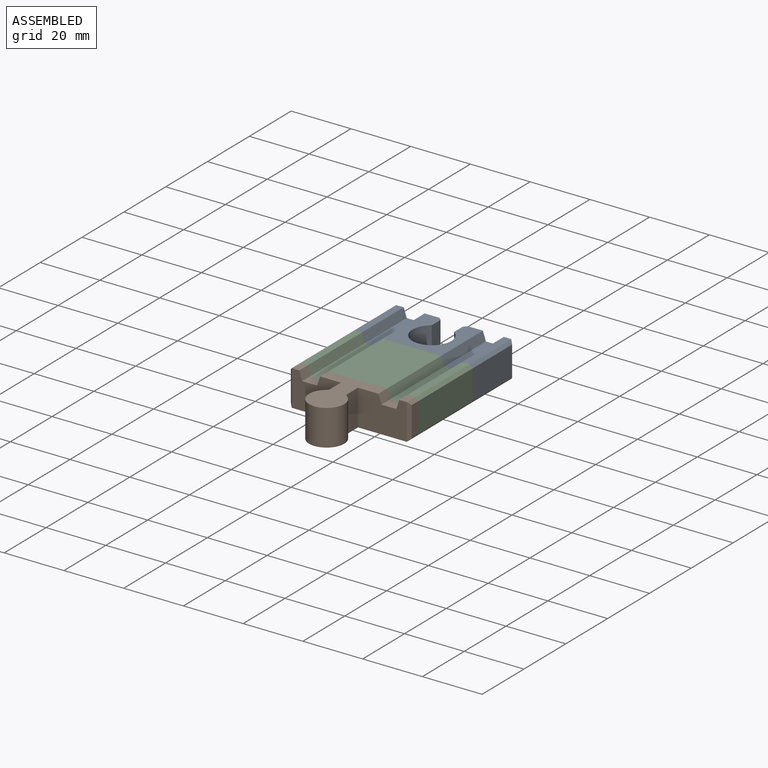
[diagram: assembled view]
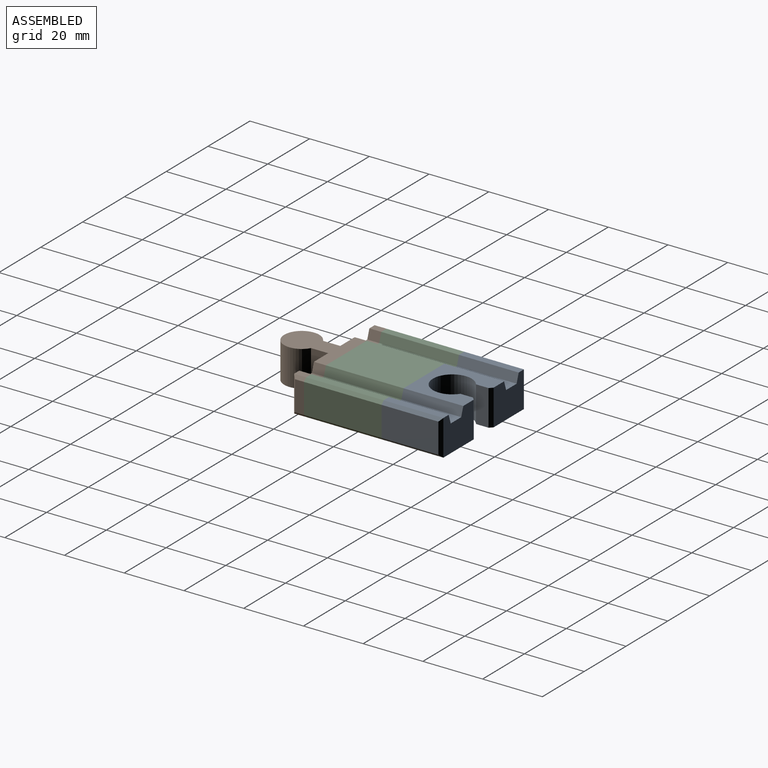
[diagram: assembled view, second angle]
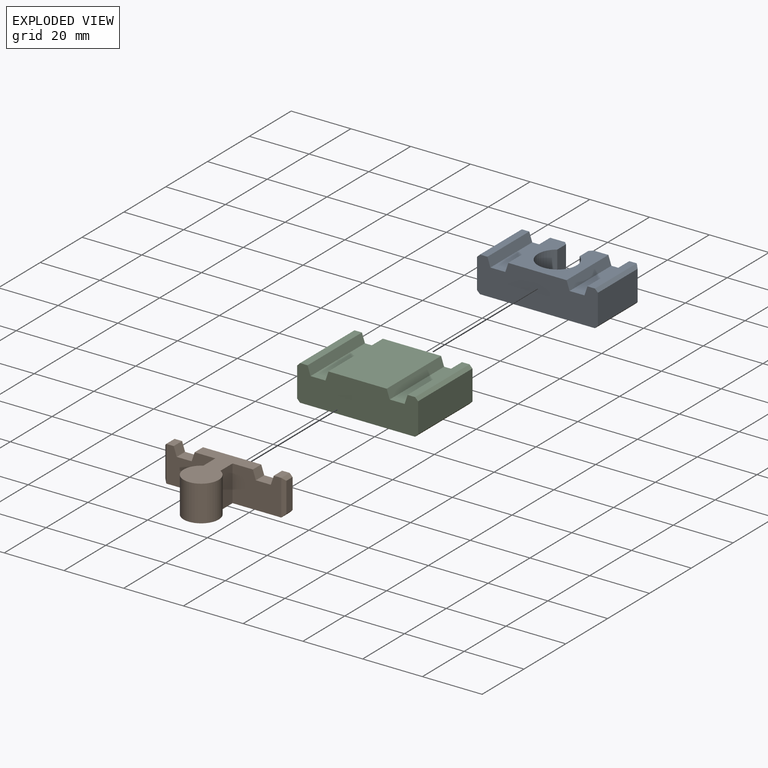
[diagram: exploded view]
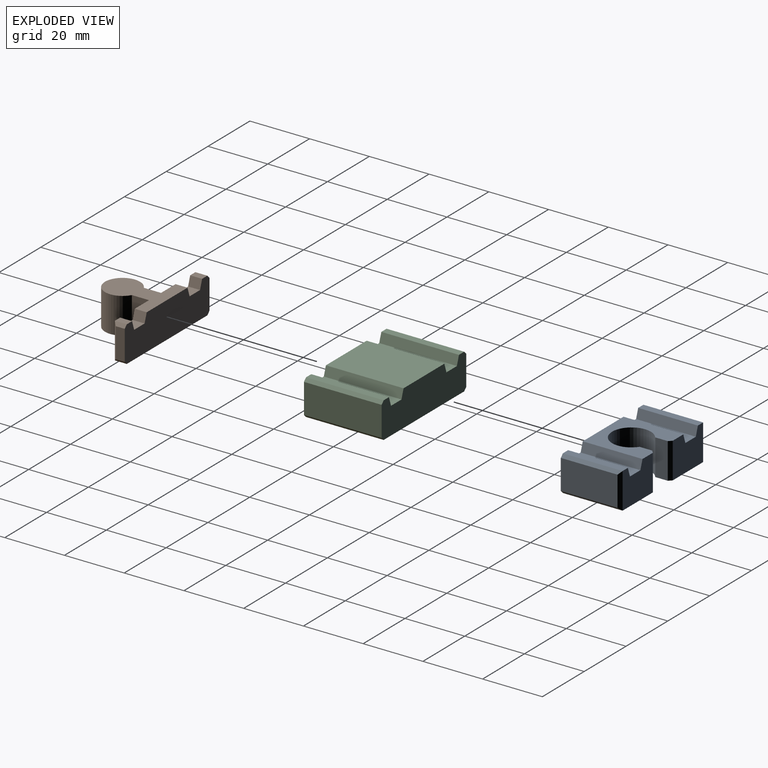
[diagram: exploded view, second angle]
ASSEMBLY  parts=3 mates=2
PART A: 26 faces, bbox 40.5x20x12 mm
  f0: plane 38.5x20mm, normal (0,0,-1), area 603.4mm2, adj f2,f13,f14,f15,f16,f17,f18,f21
  f1: plane 20x19.5mm, normal (0,0,1), area 223.4mm2, adj f2,f7,f8,f13,f14,f15,f16,f17
  f2: plane 14.51x12mm, normal (0,1,0), area 156.1mm2, adj f0,f1,f8,f9,f10,f11,f20,f21
  f3: plane 19x10mm, normal (1,0,0), area 190mm2, adj f14,f23,f24,f25
  f4: plane 20x2.5mm, normal (0,0,1), area 50mm2, adj f5,f13,f14,f24
  f5: plane 20x3mm, normal (-0.95,0,0.32), area 63.2mm2, adj f4,f6,f13,f14
  f6: plane 20x5mm, normal (0,0,1), area 100mm2, adj f5,f7,f13,f14
  f7: plane 20x3mm, normal (0.95,0,0.32), area 63.2mm2, adj f1,f6,f13,f14
  f8: plane 20x3mm, normal (-0.95,0,0.32), area 63.2mm2, adj f1,f2,f9,f14
  f9: plane 20x5mm, normal (0,0,1), area 100mm2, adj f2,f8,f10,f14
  f10: plane 20x3mm, normal (0.95,0,0.32), area 63.2mm2, adj f2,f9,f11,f14
  f11: plane 20x2.5mm, normal (0,0,1), area 50mm2, adj f2,f10,f14,f19
  f12: plane 19x10mm, normal (-1,0,0), area 190mm2, adj f14,f18,f19,f20
  f13: plane 14.49x12mm, normal (0,1,0), area 155.9mm2, adj f0,f1,f4,f5,f6,f7,f22,f25
  f14: plane 40.5x12mm, normal (0,-1,0), area 448mm2, adj f0,f1,f3,f4,f5,f6,f7,f8
  f15: cylinder r=6.5mm len=13mm, axis (0,0,1), area 394.2mm2, adj f0,f1,f16,f17
  f16: plane 12x4.19mm, normal (1,0,0), area 50.3mm2, adj f0,f1,f15,f21
  f17: plane 12x4.19mm, normal (-1,0,0), area 50.3mm2, adj f0,f1,f15,f22
  f18: plane 20x1mm, normal (-0.71,0,-0.71), area 27.6mm2, adj f0,f12,f14,f20
  f19: plane 20x1mm, normal (-0.71,0,0.71), area 27.6mm2, adj f11,f12,f14,f20
  f20: plane 12x1mm, normal (-0.71,0.71,0), area 15.6mm2, adj f2,f12,f18,f19
  f21: plane 12x1mm, normal (0.71,0.71,0), area 17mm2, adj f0,f1,f2,f16
  f22: plane 12x1mm, normal (-0.71,0.71,0), area 17mm2, adj f0,f1,f13,f17
  f23: plane 20x1mm, normal (0.71,0,-0.71), area 27.6mm2, adj f0,f3,f14,f25
  f24: plane 20x1mm, normal (0.71,0,0.71), area 27.6mm2, adj f3,f4,f14,f25
  f25: plane 12x1mm, normal (0.71,0.71,0), area 15.6mm2, adj f3,f13,f23,f24
PART B: 24 faces, bbox 40.5x20.8x12 mm
  f0: plane 16.31x12mm, normal (0,1,0), area 177.8mm2, adj f1,f7,f8,f9,f10,f11,f17,f20
  f1: plane 38.5x20.75mm, normal (0,0,-1), area 292.6mm2, adj f0,f13,f14,f15,f16,f17,f18,f21
  f2: plane 10x3mm, normal (1,0,0), area 30mm2, adj f13,f21,f22,f23
  f3: plane 4x2.5mm, normal (0,0,1), area 10mm2, adj f4,f13,f14,f22
  f4: plane 4x3mm, normal (-0.95,0,0.32), area 12.6mm2, adj f3,f5,f13,f14
  f5: plane 5x4mm, normal (0,0,1), area 20mm2, adj f4,f6,f13,f14
  f6: plane 4x3mm, normal (0.95,0,0.32), area 12.6mm2, adj f5,f7,f13,f14
  f7: plane 20.75x19.5mm, normal (0,0,1), area 216.6mm2, adj f0,f6,f8,f13,f14,f15,f16,f17
  f8: plane 4x3mm, normal (-0.95,0,0.32), area 12.6mm2, adj f0,f7,f9,f13
  f9: plane 5x4mm, normal (0,0,1), area 20mm2, adj f0,f8,f10,f13
  f10: plane 4x3mm, normal (0.95,0,0.32), area 12.6mm2, adj f0,f9,f11,f13
  f11: plane 4x2.5mm, normal (0,0,1), area 10mm2, adj f0,f10,f13,f19
  f12: plane 10x3mm, normal (-1,0,0), area 30mm2, adj f13,f18,f19,f20
  f13: plane 40.5x12mm, normal (0,-1,0), area 448mm2, adj f1,f2,f3,f4,f5,f6,f7,f8
  f14: plane 16.44x12mm, normal (0,1,0), area 179.2mm2, adj f1,f3,f4,f5,f6,f7,f15,f23
  f15: plane 12x5.75mm, normal (1,0,0), area 69mm2, adj f1,f7,f14,f16
  f16: cylinder r=5.88mm len=12mm, axis (0,0,1), area 370.9mm2, adj f1,f7,f15,f17
  f17: plane 12x5.75mm, normal (-1,0,0), area 69mm2, adj f0,f1,f7,f16
  f18: plane 4x1mm, normal (-0.71,0,-0.71), area 4.9mm2, adj f1,f12,f13,f20
  f19: plane 4x1mm, normal (-0.71,0,0.71), area 4.9mm2, adj f11,f12,f13,f20
  f20: plane 12x1mm, normal (-0.71,0.71,0), area 15.6mm2, adj f0,f12,f18,f19
  f21: plane 4x1mm, normal (0.71,0,-0.71), area 4.9mm2, adj f1,f2,f13,f23
  f22: plane 4x1mm, normal (0.71,0,0.71), area 4.9mm2, adj f2,f3,f13,f23
  f23: plane 12x1mm, normal (0.71,0.71,0), area 15.6mm2, adj f2,f14,f21,f22
PART C: 18 faces, bbox 40.5x26x12 mm
  f0: plane 38.5x26mm, normal (0,0,-1), area 1001mm2, adj f12,f13,f14,f15
  f1: plane 26x10mm, normal (1,0,0), area 260mm2, adj f12,f13,f15,f16
  f2: plane 26x2.5mm, normal (0,0,1), area 65mm2, adj f3,f12,f13,f16
  f3: plane 26x3mm, normal (-0.95,0,0.32), area 82.2mm2, adj f2,f4,f12,f13
  f4: plane 26x5mm, normal (0,0,1), area 130mm2, adj f3,f5,f12,f13
  f5: plane 26x3mm, normal (0.95,0,0.32), area 82.2mm2, adj f4,f6,f12,f13
  f6: plane 26x19.5mm, normal (0,0,1), area 507mm2, adj f5,f7,f12,f13
  f7: plane 26x3mm, normal (-0.95,0,0.32), area 82.2mm2, adj f6,f8,f12,f13
  f8: plane 26x5mm, normal (0,0,1), area 130mm2, adj f7,f9,f12,f13
  f9: plane 26x3mm, normal (0.95,0,0.32), area 82.2mm2, adj f8,f10,f12,f13
  f10: plane 26x2.5mm, normal (0,0,1), area 65mm2, adj f9,f12,f13,f17
  f11: plane 26x10mm, normal (-1,0,0), area 260mm2, adj f12,f13,f14,f17
  f12: plane 40.5x12mm, normal (0,1,0), area 448mm2, adj f0,f1,f2,f3,f4,f5,f6,f7
  f13: plane 40.5x12mm, normal (0,-1,0), area 448mm2, adj f0,f1,f2,f3,f4,f5,f6,f7
  f14: plane 26x1mm, normal (-0.71,0,-0.71), area 36.8mm2, adj f0,f11,f12,f13
  f15: plane 26x1mm, normal (0.71,0,-0.71), area 36.8mm2, adj f0,f1,f12,f13
  f16: plane 26x1mm, normal (0.71,0,0.71), area 36.8mm2, adj f1,f2,f12,f13
  f17: plane 26x1mm, normal (-0.71,0,0.71), area 36.8mm2, adj f10,f11,f12,f13
PLACE A t=(31.32,10.25,0)mm
PLACE B rot(axis=(0,0,1),180deg) t=(31.37,-19.75,0)mm
PLACE C rot(axis=(0,0,-1),0deg) t=(31.31,-15.75,0)mm
MATE fastened C.f13 <-> B.f13  axis (0,-1,0) through (31.31,-15.75,5.63)mm
MATE fastened A.f14 <-> C.f12  axis (0,-1,0) through (31.31,10.25,5.63)mm
